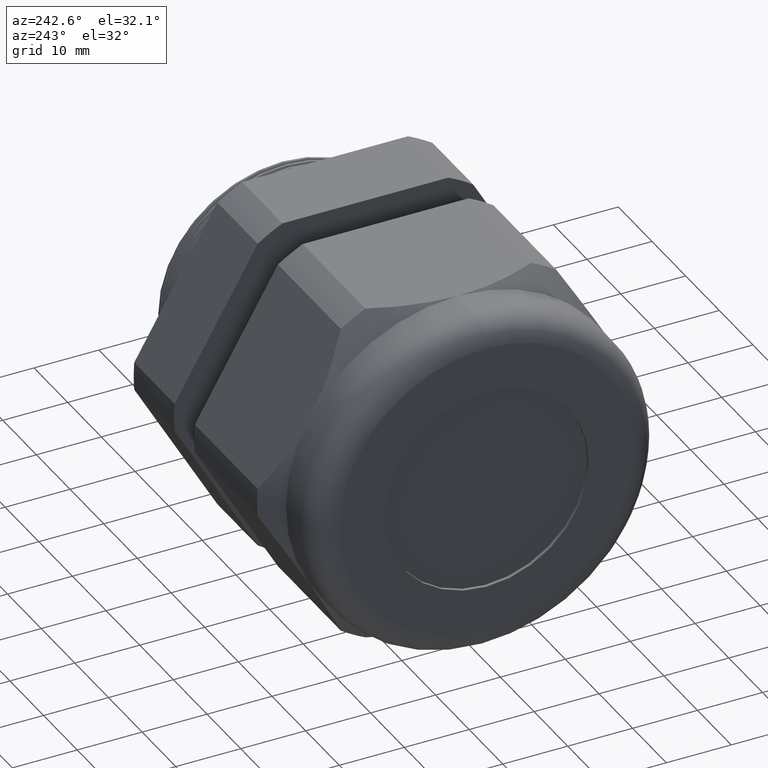
[diagram: clean part render]
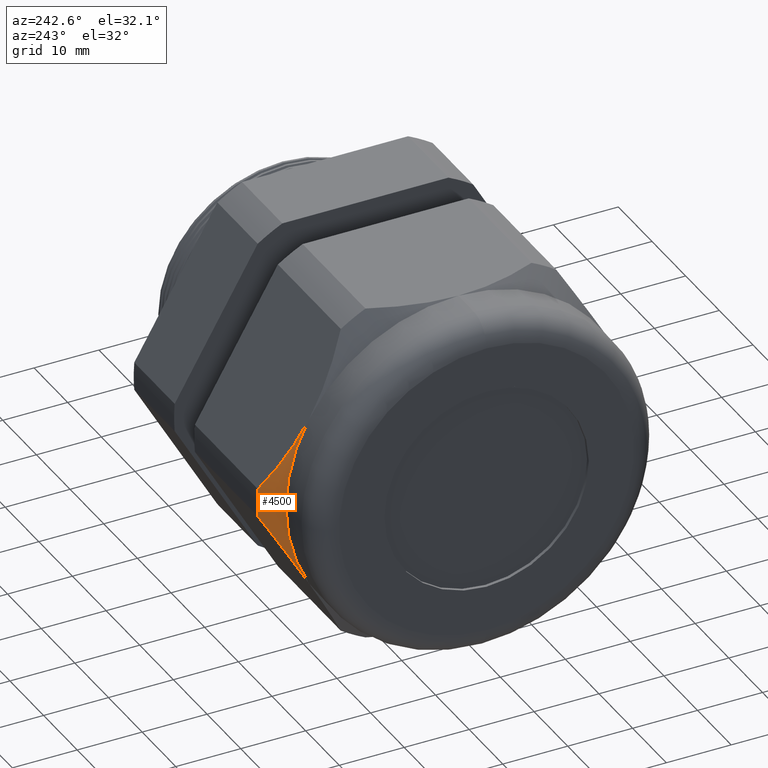
[diagram: same view with one face highlighted and labeled with its STEP entity id]
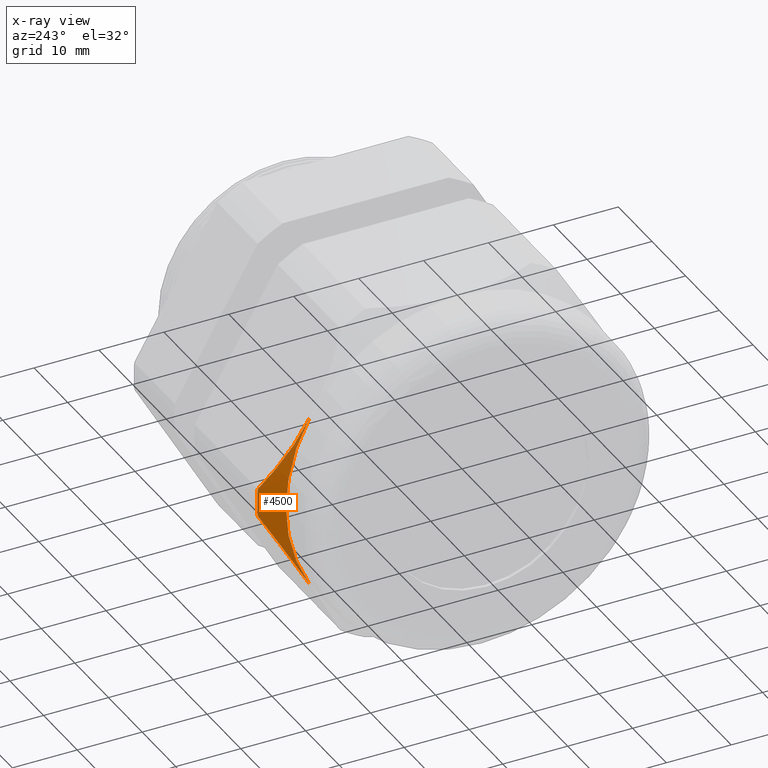
[diagram: x-ray of the same camera — body ghosted, the highlighted face saturated]
A machine part, auxiliary view. The second image highlights one B-rep face of the part: STEP entity #4500.
The next image is the same camera in x-ray: the body ghosted, the highlighted face saturated — about 0% of this face is hidden behind the body in this view.
In plain terms, the highlighted conical surface has half-angle 45 deg.
Its self-contained STEP definition (entity closure, byte-faithful):
#1812 = DIRECTION ( 'NONE',  ( 0.0000000000000000000, 0.0000000000000000000, -1.000000000000000000 ) ) ;
#1813 = DIRECTION ( 'NONE',  ( 1.000000000000000000, 0.0000000000000000000, 0.0000000000000000000 ) ) ;
#1814 = CARTESIAN_POINT ( 'NONE',  ( -1.869292000000000000, 0.0000000000000000000, 0.0000000000000000000 ) ) ;
#1815 = AXIS2_PLACEMENT_3D ( 'NONE', #1814, #1813, #1812 ) ;
#1816 = CIRCLE ( 'NONE', #1815, 1.044999999999999700 ) ;
#1818 = CARTESIAN_POINT ( 'NONE',  ( -1.869292000000000000, 0.9049965469547380800, 0.5224999999999996300 ) ) ;
#1820 = CARTESIAN_POINT ( 'NONE',  ( -1.869292000000000000, 0.9049965469547385200, -0.5224999999999998500 ) ) ;
#2035 = CARTESIAN_POINT ( 'NONE',  ( -1.869292000000000000, 0.9049965469547380800, 0.5224999999999996300 ) ) ;
#2036 = CARTESIAN_POINT ( 'NONE',  ( -1.869292000000000200, 0.9158927675541824700, 0.5036271923112831700 ) ) ;
#2037 = CARTESIAN_POINT ( 'NONE',  ( -1.868602443834754800, 0.9268886498704120800, 0.4845817654655257800 ) ) ;
#2038 = CARTESIAN_POINT ( 'NONE',  ( -1.865863667396531600, 0.9487354810206960500, 0.4467419439288563600 ) ) ;
#2039 = CARTESIAN_POINT ( 'NONE',  ( -1.863823402605176300, 0.9595753005800545800, 0.4279668257071680400 ) ) ;
#2040 = CARTESIAN_POINT ( 'NONE',  ( -1.855811452808128200, 0.9918591077759824100, 0.3720496313820638700 ) ) ;
#2041 = CARTESIAN_POINT ( 'NONE',  ( -1.847948022855568000, 1.013067370471512700, 0.3353158428531361500 ) ) ;
#2042 = CARTESIAN_POINT ( 'NONE',  ( -1.817835050397151000, 1.075879385687209500, 0.2265222411737605700 ) ) ;
#2043 = CARTESIAN_POINT ( 'NONE',  ( -1.789102837835438600, 1.116675351185548500, 0.1558615561868109700 ) ) ;
#2044 = CARTESIAN_POINT ( 'NONE',  ( -1.754342000000000300, 1.156720106887057600, 0.08650200473511329700 ) ) ;
#2048 = B_SPLINE_CURVE_WITH_KNOTS ( 'NONE', 3,
 ( #2044, #2043, #2042, #2041, #2040, #2039, #2038, #2037, #2036, #2035 ),
 .UNSPECIFIED., .F., .F.,
 ( 4, 2, 2, 2, 4 ),
 ( 2.483246824836743700E-007, 0.006562468983848361400, 0.009843579313431301600, 0.01148413447822277000, 0.01312468964301423600 ),
 .UNSPECIFIED. ) ;
#2077 = CARTESIAN_POINT ( 'NONE',  ( -1.754342000000000300, 1.156720106887057600, 0.08650200473511329700 ) ) ;
#2093 = DIRECTION ( 'NONE',  ( 0.0000000000000000000, 0.0000000000000000000, -1.000000000000000000 ) ) ;
#2094 = DIRECTION ( 'NONE',  ( 1.000000000000000000, 0.0000000000000000000, 0.0000000000000000000 ) ) ;
#2095 = CARTESIAN_POINT ( 'NONE',  ( -1.754342000000000300, 0.0000000000000000000, 0.0000000000000000000 ) ) ;
#2096 = AXIS2_PLACEMENT_3D ( 'NONE', #2095, #2094, #2093 ) ;
#2097 = CIRCLE ( 'NONE', #2096, 1.159950000000000000 ) ;
#2738 = DIRECTION ( 'NONE',  ( 0.0000000000000000000, 0.0000000000000000000, 1.000000000000000000 ) ) ;
#2739 = DIRECTION ( 'NONE',  ( 1.000000000000000000, 0.0000000000000000000, 0.0000000000000000000 ) ) ;
#2740 = CARTESIAN_POINT ( 'NONE',  ( -1.869292000000000000, 0.0000000000000000000, 0.0000000000000000000 ) ) ;
#2741 = AXIS2_PLACEMENT_3D ( 'NONE', #2740, #2739, #2738 ) ;
#2743 = CONICAL_SURFACE ( 'NONE', #2741, 1.045000000000000200, 0.7853981633974501700 ) ;
#2744 = FACE_OUTER_BOUND ( 'NONE', #4517, .T. ) ;
#3639 = CARTESIAN_POINT ( 'NONE',  ( -1.754342000000000300, 1.156720106887058100, -0.08650200473511308900 ) ) ;
#3640 = CARTESIAN_POINT ( 'NONE',  ( -1.771743928187930400, 1.136672950189631300, -0.1212246986823505300 ) ) ;
#3641 = CARTESIAN_POINT ( 'NONE',  ( -1.787722809093209400, 1.116325425824559800, -0.1564676446909000500 ) ) ;
#3642 = CARTESIAN_POINT ( 'NONE',  ( -1.816049984818948600, 1.075009018692886000, -0.2280297610291595600 ) ) ;
#3643 = CARTESIAN_POINT ( 'NONE',  ( -1.828286401335963000, 1.054198518062448000, -0.2640746054520226000 ) ) ;
#3644 = CARTESIAN_POINT ( 'NONE',  ( -1.858295772310754000, 0.9912375501002808100, -0.3731262008562127900 ) ) ;
#3645 = CARTESIAN_POINT ( 'NONE',  ( -1.869292000000000400, 0.9485515436756352100, -0.4470605327559103400 ) ) ;
#3646 = CARTESIAN_POINT ( 'NONE',  ( -1.869292000000000000, 0.9049965469547385200, -0.5224999999999998500 ) ) ;
#3647 = B_SPLINE_CURVE_WITH_KNOTS ( 'NONE', 3,
 ( #3646, #3645, #3644, #3643, #3642, #3641, #3640, #3639 ),
 .UNSPECIFIED., .F., .F.,
 ( 4, 2, 2, 4 ),
 ( 0.01312468964301424100, 0.01968241065928899200, 0.02296127116742636600, 0.02624013167556374000 ),
 .UNSPECIFIED. ) ;
#3648 = CARTESIAN_POINT ( 'NONE',  ( -1.754342000000000300, 1.156720106887058100, -0.08650200473511308900 ) ) ;
#3983 = VERTEX_POINT ( 'NONE', #1820 ) ;
#3986 = VERTEX_POINT ( 'NONE', #1818 ) ;
#3988 = EDGE_CURVE ( 'NONE', #3983, #3986, #1816, .T. ) ;
#4105 = EDGE_CURVE ( 'NONE', #4115, #3986, #2048, .T. ) ;
#4115 = VERTEX_POINT ( 'NONE', #2077 ) ;
#4141 = EDGE_CURVE ( 'NONE', #5094, #4115, #2097, .T. ) ;
#4500 = ADVANCED_FACE ( 'NONE', ( #2744 ), #2743, .T. ) ;
#4517 = EDGE_LOOP ( 'NONE', ( #4540, #4534, #4530, #4546 ) ) ;
#4530 = ORIENTED_EDGE ( 'NONE', *, *, #4141, .F. ) ;
#4534 = ORIENTED_EDGE ( 'NONE', *, *, #4105, .F. ) ;
#4540 = ORIENTED_EDGE ( 'NONE', *, *, #3988, .T. ) ;
#4546 = ORIENTED_EDGE ( 'NONE', *, *, #5095, .F. ) ;
#5094 = VERTEX_POINT ( 'NONE', #3648 ) ;
#5095 = EDGE_CURVE ( 'NONE', #3983, #5094, #3647, .T. ) ;